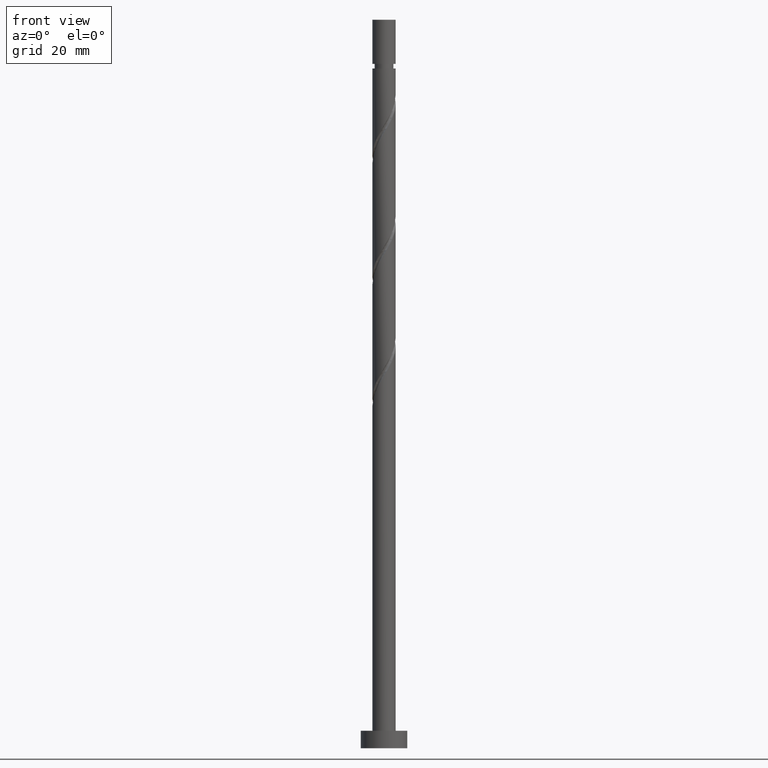
[diagram: clean part render]
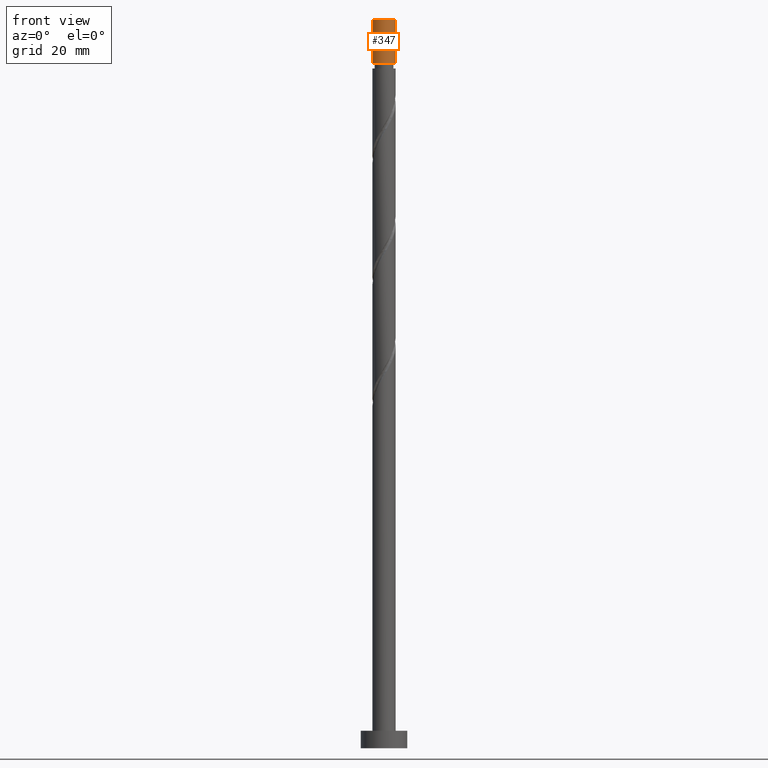
[diagram: same view with one face highlighted and labeled with its STEP entity id]
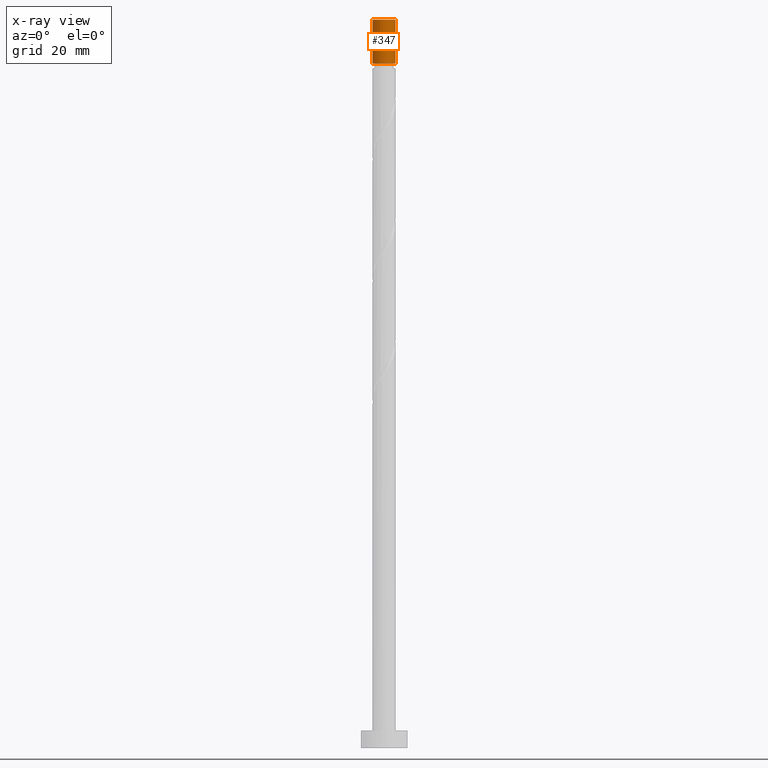
[diagram: x-ray of the same camera — body ghosted, the highlighted face saturated]
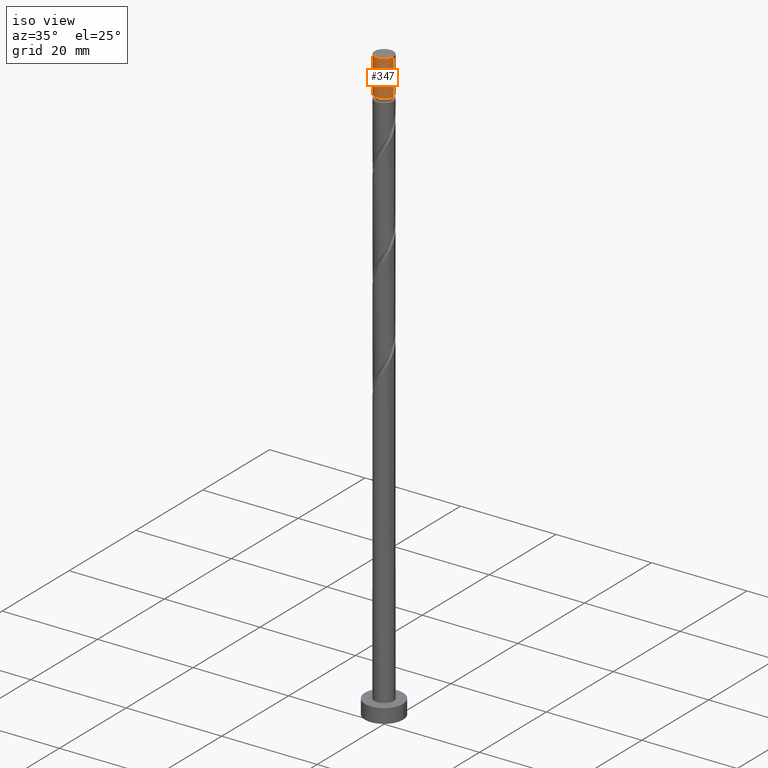
[diagram: same view with one face highlighted and labeled with its STEP entity id]
A machine part, front view. The second image highlights one B-rep face of the part: STEP entity #347.
The next image is the same camera in x-ray: the body ghosted, the highlighted face saturated — about 0% of this face is hidden behind the body in this view.
A second angle (iso view) of the same face is appended — the face is thin or edge-on in the first view.
In plain terms, the highlighted cylindrical surface (edge-blend (fillet) strip) has radius 2 mm, axis along (-0, -0, -1).
Its self-contained STEP definition (entity closure, byte-faithful):
#4 = DIRECTION ( 'NONE',  ( -0.000000000000000000, -0.000000000000000000, -1.000000000000000000 ) ) ;
#38 = ORIENTED_EDGE ( 'NONE', *, *, #159, .T. ) ;
#39 = ORIENTED_EDGE ( 'NONE', *, *, #801, .F. ) ;
#95 = CARTESIAN_POINT ( 'NONE',  ( 2.000000000000000000, 2.449293598294705921E-16, 125.0000000000000000 ) ) ;
#101 = VERTEX_POINT ( 'NONE', #440 ) ;
#128 = DIRECTION ( 'NONE',  ( -0.000000000000000000, -0.000000000000000000, -1.000000000000000000 ) ) ;
#158 = CARTESIAN_POINT ( 'NONE',  ( 0.000000000000000000, 0.000000000000000000, 125.0000000000000000 ) ) ;
#159 = EDGE_CURVE ( 'NONE', #101, #312, #479, .T. ) ;
#161 = VERTEX_POINT ( 'NONE', #95 ) ;
#175 = ORIENTED_EDGE ( 'NONE', *, *, #298, .F. ) ;
#298 = EDGE_CURVE ( 'NONE', #161, #1373, #1312, .T. ) ;
#312 = VERTEX_POINT ( 'NONE', #1433 ) ;
#334 = DIRECTION ( 'NONE',  ( 0.000000000000000000, 0.000000000000000000, 1.000000000000000000 ) ) ;
#347 = ADVANCED_FACE ( 'NONE', ( #895 ), #647, .T. ) ;
#357 = AXIS2_PLACEMENT_3D ( 'NONE', #158, #4, #1230 ) ;
#361 = VECTOR ( 'NONE', #708, 1000.000000000000000 ) ;
#417 = VECTOR ( 'NONE', #128, 1000.000000000000000 ) ;
#440 = CARTESIAN_POINT ( 'NONE',  ( -2.000000000000000000, 0.000000000000000000, 125.0000000000000000 ) ) ;
#479 = LINE ( 'NONE', #605, #361 ) ;
#595 = CARTESIAN_POINT ( 'NONE',  ( 1.999999999999998224, 2.449293598294704935E-16, 117.4380344228996194 ) ) ;
#605 = CARTESIAN_POINT ( 'NONE',  ( -2.000000000000000000, 0.000000000000000000, 125.0000000000000000 ) ) ;
#647 = CYLINDRICAL_SURFACE ( 'NONE', #357, 2.000000000000000000 ) ;
#706 = DIRECTION ( 'NONE',  ( 1.000000000000000000, 0.000000000000000000, 0.000000000000000000 ) ) ;
#708 = DIRECTION ( 'NONE',  ( -0.000000000000000000, -0.000000000000000000, -1.000000000000000000 ) ) ;
#772 = EDGE_CURVE ( 'NONE', #1373, #312, #800, .T. ) ;
#800 = CIRCLE ( 'NONE', #854, 1.999999999999998224 ) ;
#801 = EDGE_CURVE ( 'NONE', #101, #161, #1306, .T. ) ;
#804 = DIRECTION ( 'NONE',  ( -1.000000000000000000, 0.000000000000000000, 0.000000000000000000 ) ) ;
#854 = AXIS2_PLACEMENT_3D ( 'NONE', #1043, #1523, #804 ) ;
#855 = EDGE_LOOP ( 'NONE', ( #175, #39, #38, #1259 ) ) ;
#895 = FACE_OUTER_BOUND ( 'NONE', #855, .T. ) ;
#950 = CARTESIAN_POINT ( 'NONE',  ( 2.000000000000000000, 2.449293598294705921E-16, 125.0000000000000000 ) ) ;
#1043 = CARTESIAN_POINT ( 'NONE',  ( 0.000000000000000000, 0.000000000000000000, 117.4380344228996194 ) ) ;
#1197 = CARTESIAN_POINT ( 'NONE',  ( 0.000000000000000000, 0.000000000000000000, 125.0000000000000000 ) ) ;
#1202 = AXIS2_PLACEMENT_3D ( 'NONE', #1197, #334, #706 ) ;
#1230 = DIRECTION ( 'NONE',  ( -1.000000000000000000, 0.000000000000000000, 0.000000000000000000 ) ) ;
#1259 = ORIENTED_EDGE ( 'NONE', *, *, #772, .F. ) ;
#1306 = CIRCLE ( 'NONE', #1202, 2.000000000000000000 ) ;
#1312 = LINE ( 'NONE', #950, #417 ) ;
#1373 = VERTEX_POINT ( 'NONE', #595 ) ;
#1433 = CARTESIAN_POINT ( 'NONE',  ( -1.999999999999998224, 0.000000000000000000, 117.4380344228996194 ) ) ;
#1523 = DIRECTION ( 'NONE',  ( -0.000000000000000000, -0.000000000000000000, -1.000000000000000000 ) ) ;